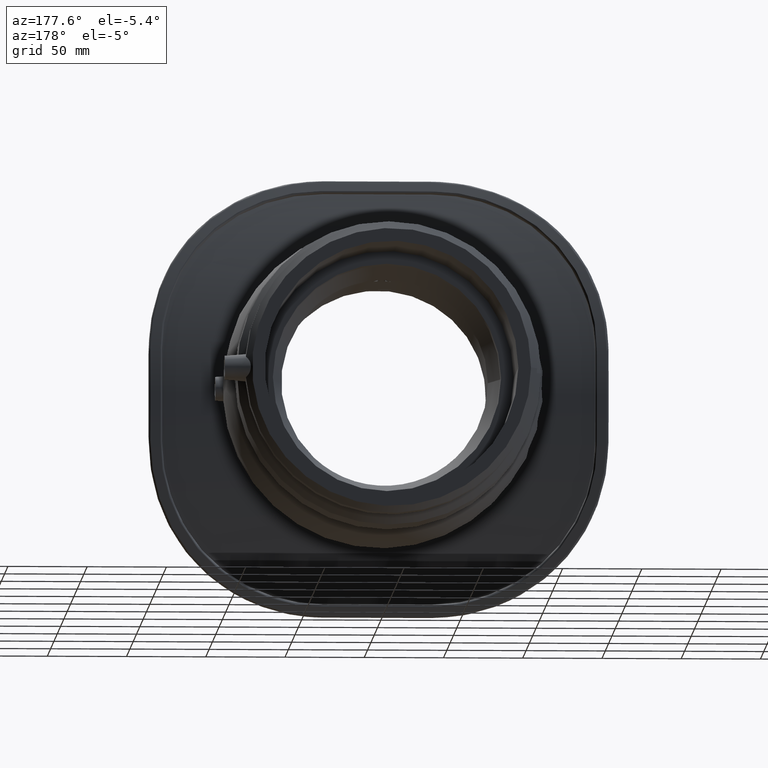
[diagram: clean part render]
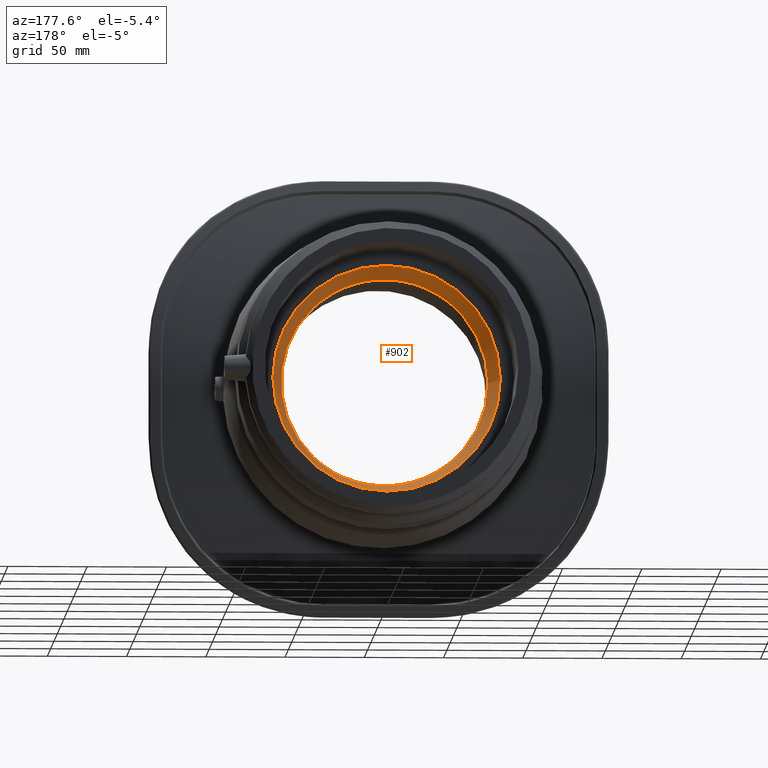
[diagram: same view with one face highlighted and labeled with its STEP entity id]
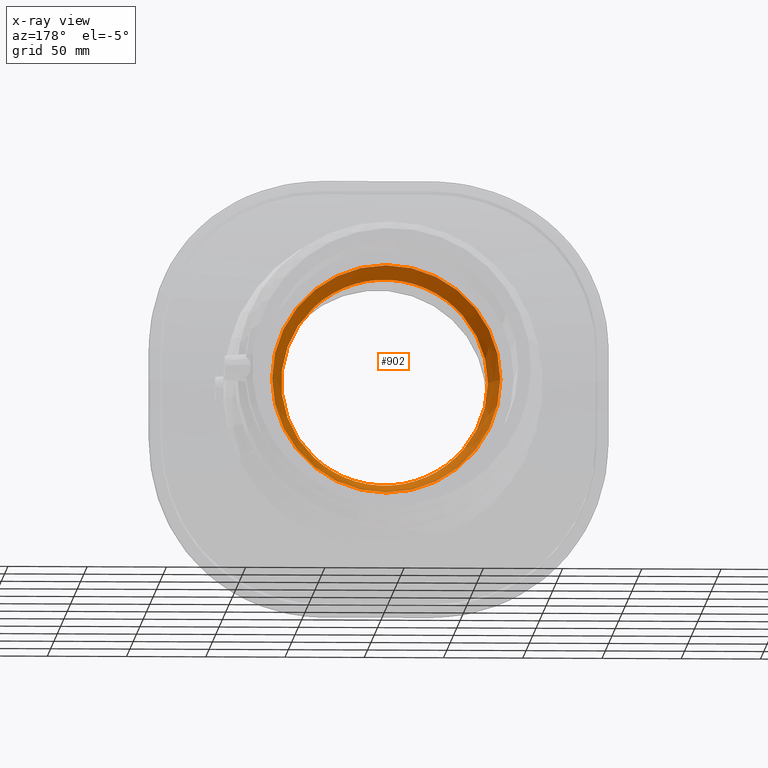
[diagram: x-ray of the same camera — body ghosted, the highlighted face saturated]
A machine part, auxiliary view. The second image highlights one B-rep face of the part: STEP entity #902.
The next image is the same camera in x-ray: the body ghosted, the highlighted face saturated — about 0% of this face is hidden behind the body in this view.
In plain terms, the highlighted conical surface has half-angle 15 deg.
Its self-contained STEP definition (entity closure, byte-faithful):
#126=CONICAL_SURFACE('',#988,68.5985047611763,14.9999999999999);
#146=FACE_BOUND('',#292,.T.);
#210=FACE_OUTER_BOUND('',#291,.T.);
#291=EDGE_LOOP('',(#664));
#292=EDGE_LOOP('',(#665));
#379=CIRCLE('',#989,72.);
#380=CIRCLE('',#990,65.1970095223526);
#444=VERTEX_POINT('',#1630);
#445=VERTEX_POINT('',#1632);
#531=EDGE_CURVE('',#444,#444,#379,.T.);
#532=EDGE_CURVE('',#445,#445,#380,.T.);
#664=ORIENTED_EDGE('',*,*,#531,.T.);
#665=ORIENTED_EDGE('',*,*,#532,.F.);
#902=ADVANCED_FACE('',(#210,#146),#126,.F.);
#988=AXIS2_PLACEMENT_3D('',#1629,#1137,#1138);
#989=AXIS2_PLACEMENT_3D('',#1631,#1139,#1140);
#990=AXIS2_PLACEMENT_3D('',#1633,#1141,#1142);
#1137=DIRECTION('center_axis',(0.,1.,0.));
#1138=DIRECTION('ref_axis',(-1.,0.,0.));
#1139=DIRECTION('center_axis',(0.,1.,0.));
#1140=DIRECTION('ref_axis',(1.,0.,0.));
#1141=DIRECTION('center_axis',(0.,1.,0.));
#1142=DIRECTION('ref_axis',(1.,0.,0.));
#1629=CARTESIAN_POINT('Origin',(0.,68.1054469470062,0.));
#1630=CARTESIAN_POINT('',(-72.,80.8,0.));
#1631=CARTESIAN_POINT('Origin',(0.,80.8,0.));
#1632=CARTESIAN_POINT('',(-65.1970095223526,55.4108938940124,0.));
#1633=CARTESIAN_POINT('Origin',(0.,55.4108938940124,0.));